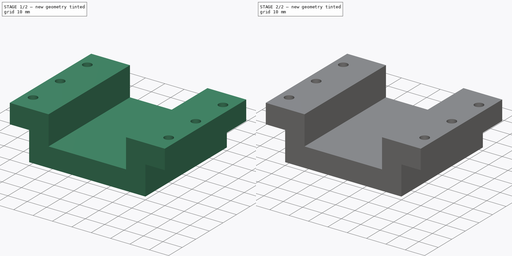
[diagram: build sequence overview — one tinted view per stage of 2, left to right]
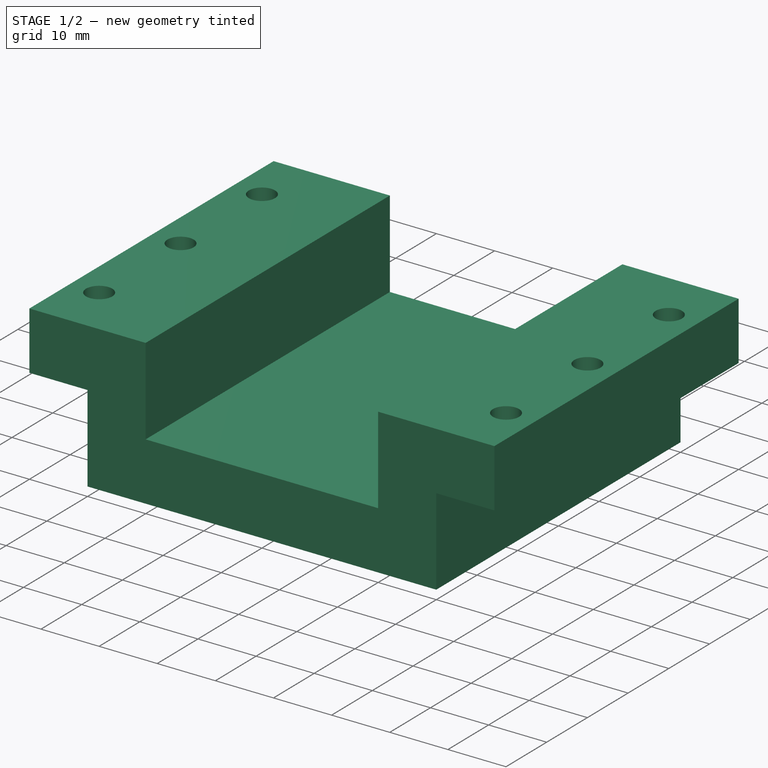
[diagram: stage 1 of 2 — iso view after this stage's code; geometry added in this stage tinted green]
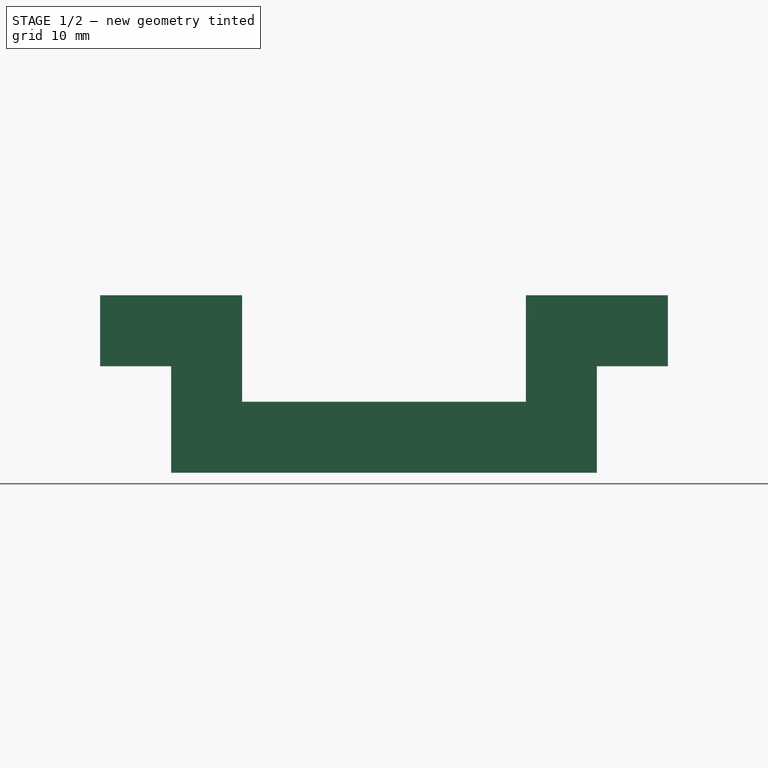
[diagram: stage 1 of 2 — front view after this stage's code; geometry added in this stage tinted green]
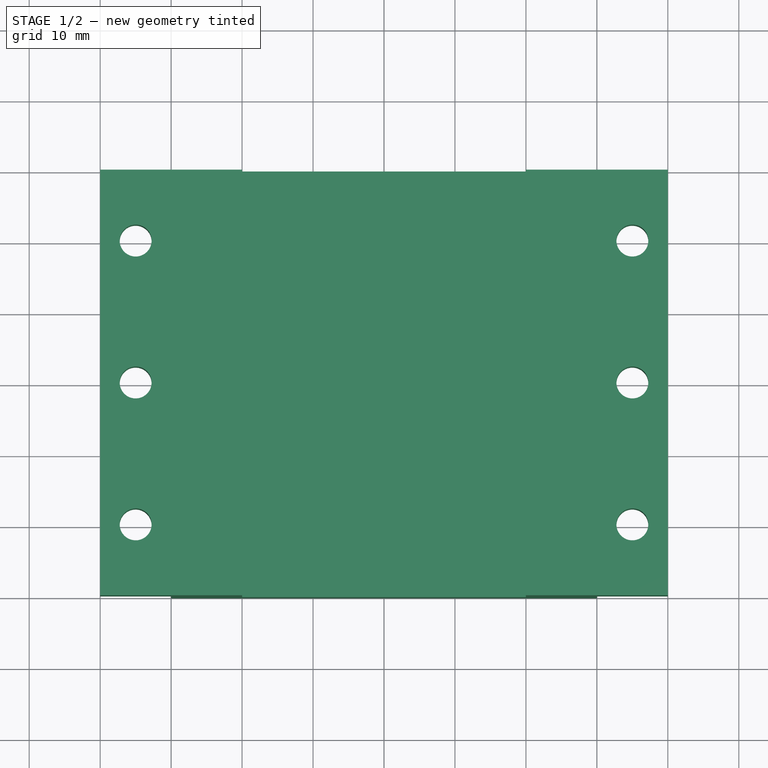
[diagram: stage 1 of 2 — top view after this stage's code; geometry added in this stage tinted green]
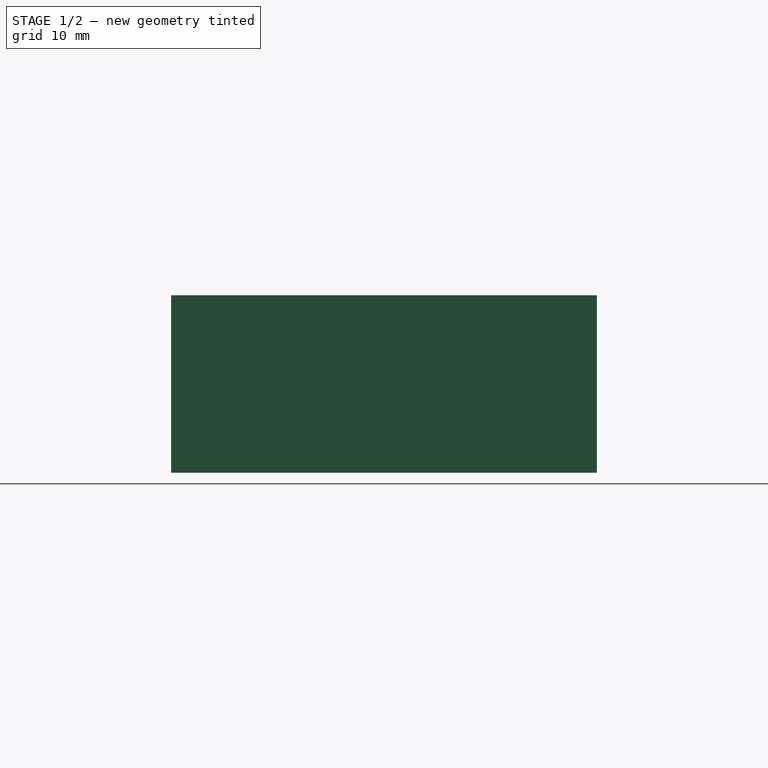
[diagram: stage 1 of 2 — right view after this stage's code; geometry added in this stage tinted green]
FCSTD DOCUMENT  (FreeCAD 0.20R29603 (Git))
Label: square_clamp
License: All rights reserved
LicenseURL: http://en.wikipedia.org/wiki/All_rights_reserved
objects: Sketcher::SketchObject×3, PartDesign::Pocket×2, Spreadsheet::Sheet×1, PartDesign::Pad×1, PartDesign::Plane×1, PartDesign::Body×1
note: 11 computed .brp shape members not serialized (recipe doc carries the construction recipe); baked Part::Feature solids carry a one-line shape summary decoded from their .brp

FEATURE [Sketcher::SketchObject] Sketch
  FullyConstrained = true
  MapMode = 5
  Placement = pos=(0,0,0) rot=(1,0,0;1.5708rad)
  Support = -> [XZ_Plane]
  expr: Constraints[16] = Spreadsheet.object_width
  expr: Constraints[17] = Spreadsheet.lip_width + Spreadsheet.wall_thickness
  expr: Constraints[18] = Spreadsheet.object_depth / 2
  expr: Constraints[23] = Spreadsheet.wall_thickness
  expr: Constraints[32] = Spreadsheet.wall_thickness
  expr: Constraints[42] = Spreadsheet.lip_width
  sketch-geometry (15):
    g0: LineSegment StartX=-40 StartY=0 StartZ=0 EndX=-20 EndY=0 EndZ=0
    g1: LineSegment StartX=-20 StartY=0 StartZ=0 EndX=-20 EndY=-15 EndZ=0
    g2: LineSegment StartX=-20 StartY=-15 StartZ=0 EndX=20 EndY=-15 EndZ=0
    g3: LineSegment StartX=20 StartY=-15 StartZ=0 EndX=20 EndY=0 EndZ=0
    g4: LineSegment StartX=20 StartY=0 StartZ=0 EndX=40 EndY=0 EndZ=0
    g5: LineSegment StartX=-40 StartY=0 StartZ=0 EndX=-40 EndY=-25 EndZ=0
    g6: LineSegment StartX=40 StartY=-25 StartZ=0 EndX=40 EndY=0 EndZ=0
    g7: LineSegment StartX=-40 StartY=0 StartZ=0 EndX=-40 EndY=-10 EndZ=0
    g8: LineSegment StartX=-30 StartY=-10 StartZ=0 EndX=-30 EndY=-25 EndZ=0
    g9: LineSegment StartX=30 StartY=-25 StartZ=0 EndX=30 EndY=-10 EndZ=0
    g10: LineSegment StartX=40 StartY=-10 StartZ=0 EndX=40 EndY=0 EndZ=0
    g11: LineSegment StartX=-40 StartY=-25 StartZ=0 EndX=40 EndY=-25 EndZ=0
    g12: LineSegment StartX=-30 StartY=-25 StartZ=0 EndX=30 EndY=-25 EndZ=0
    g13: LineSegment StartX=-40 StartY=-10 StartZ=0 EndX=-30 EndY=-10 EndZ=0
    g14: LineSegment StartX=30 StartY=-10 StartZ=0 EndX=40 EndY=-10 EndZ=0
  constraints (43):
    c: PointOnObject(g0,g-1)
    c: PointOnObject(g0,g-1)
    c: Coincident(g0,g1)
    c: Vertical(g1)
    c: Coincident(g1,g2)
    c: Horizontal(g2)
    c: Coincident(g2,g3)
    c: Vertical(g3)
    c: Coincident(g3,g4)
    c: PointOnObject(g4,g-1)
    c: Symmetric(g0,g3,g-1)
    c: Equal(g0,g4)
    c: Coincident(g0,g5)
    c: Vertical(g5)
    c: Coincident(g6,g4)
    c: Vertical(g6)
    c: Distance(g2) = 40
    c: Distance(g0) = 20
    c: Distance(g1) = 15
    c: Coincident(g0,g7)
    c: PointOnObject(g7,g5)
    c: PointOnObject(g10,g6)
    c: Coincident(g10,g4)
    c: Distance(g10) = 10
    c: Equal(g10,g7)
    c: Vertical(g8)
    c: Vertical(g9)
    c: Coincident(g11,g5)
    c: Coincident(g11,g6)
    c: Horizontal(g11)
    c: PointOnObject(g8,g11)
    c: PointOnObject(g9,g11)
    c: Distance(g1,g11) = 10
    c: Coincident(g12,g8)
    c: Coincident(g12,g9)
    c: Coincident(g13,g7)
    c: Coincident(g13,g8)
    c: Horizontal(g13)
    c: Coincident(g14,g9)
    c: Coincident(g14,g10)
    c: Horizontal(g14)
    c: Equal(g13,g14)
    c: Distance(g13) = 10
FEATURE [Spreadsheet::Sheet] Spreadsheet
  cells = A1=Height; B1(clamp_height)=60; A2=Object depth; B2(object_depth)=30; A3=Object width; B3(object_width)=40; A4=Wall thickness; B4(wall_thickness)=10; A5=Lip width; B5(lip_width)=10; A6=Lip Hole diameter; B6(lip_hole_diameter)=4.5; A7=Lip Hex width; B7(lip_hex_width)=7; A8=Lip hole spacing; B8(lip_hole_spacing)=20
FEATURE [PartDesign::Pad] Pad  label="clamp_body"
  Direction = (0,-1,-2e-16)
  Length = 60
  Length2 = 10
  Placement = pos=(0,0,0) rot=(1,0,0;1.5708rad)
  Profile = -> Sketch
  ReferenceAxis = -> Sketch [N_Axis]
  Type = 0
  expr: Length = Spreadsheet.clamp_height
FEATURE [PartDesign::Plane] DatumPlane001
  AttachmentOffset = pos=(0,0,-10) rot=(0,0,1;0rad)
  Length = 96.4924
  MapMode = 5
  Placement = pos=(0,0,-10) rot=(0,0,1;0rad)
  ResizeMode = 0
  Support = -> [XY_Plane]
  Width = 101.492
  expr: .AttachmentOffset.Base.z = -Spreadsheet.wall_thickness
FEATURE [Sketcher::SketchObject] Sketch004
  FullyConstrained = true
  MapMode = 5
  Placement = pos=(0,0,-10) rot=(0,0,1;0rad)
  Support = -> [DatumPlane001]
  expr: Constraints[11] = -(Spreadsheet.object_width / 2 + Spreadsheet.lip_width / 2 + Spreadsheet.wall_thickness)
  expr: Constraints[12] = Spreadsheet.object_width / 2 + Spreadsheet.lip_width / 2 + Spreadsheet.wall_thickness
  expr: Constraints[18] = Spreadsheet.lip_hole_spacing / 2
  expr: Constraints[19] = Spreadsheet.lip_hole_spacing
  expr: Constraints[2] = Spreadsheet.lip_hole_diameter
  sketch-geometry (16):
    g0: Circle CenterX=-35 CenterY=-10 CenterZ=0 NormalX=0 NormalY=0 NormalZ=1 AngleXU=0 Radius=2.25
    g1: Circle CenterX=35 CenterY=-10 CenterZ=0 NormalX=0 NormalY=0 NormalZ=1 AngleXU=0 Radius=2.25
    g2: Circle CenterX=-35 CenterY=-30 CenterZ=0 NormalX=0 NormalY=0 NormalZ=1 AngleXU=0 Radius=2.25
    g3: Circle CenterX=35 CenterY=-30 CenterZ=0 NormalX=0 NormalY=0 NormalZ=1 AngleXU=0 Radius=2.25
    g4: LineSegment StartX=-35 StartY=0 StartZ=0 EndX=-35 EndY=-10 EndZ=0
    g5: LineSegment StartX=-35 StartY=-10 StartZ=0 EndX=-35 EndY=-30 EndZ=0
    g6: LineSegment StartX=35 StartY=-2e-16 StartZ=0 EndX=35 EndY=-10 EndZ=0
    g7: LineSegment StartX=35 StartY=-10 StartZ=0 EndX=35 EndY=-30 EndZ=0
    g8: LineSegment StartX=-35 StartY=-30 StartZ=0 EndX=-35 EndY=-50 EndZ=0
    g9: LineSegment StartX=-35 StartY=-50 StartZ=0 EndX=-35 EndY=-70 EndZ=0
    g10: LineSegment StartX=35 StartY=-30 StartZ=0 EndX=35 EndY=-50 EndZ=0
    g11: LineSegment StartX=35 StartY=-50 StartZ=0 EndX=35 EndY=-70 EndZ=0
    g12: Circle CenterX=-35 CenterY=-50 CenterZ=0 NormalX=0 NormalY=0 NormalZ=1 AngleXU=0 Radius=2.25
    g13: Circle CenterX=-35 CenterY=-70 CenterZ=0 NormalX=0 NormalY=0 NormalZ=1 AngleXU=0 Radius=2.25
    g14: Circle CenterX=35 CenterY=-50 CenterZ=0 NormalX=0 NormalY=0 NormalZ=1 AngleXU=0 Radius=2.25
    g15: Circle CenterX=35 CenterY=-70 CenterZ=0 NormalX=0 NormalY=0 NormalZ=1 AngleXU=0 Radius=2.25
  constraints (42):
    c: Symmetric(g0,g1,g-2)
    c: Equal(g1,g0)
    c: Diameter(g1) = 4.5
    c: PointOnObject(g4,g-1)
    c: Vertical(g4)
    c: Coincident(g4,g5)
    c: Vertical(g5)
    c: PointOnObject(g6,g-1)
    c: Vertical(g6)
    c: Coincident(g6,g7)
    c: Vertical(g7)
    c: DistanceX(g-2,g4) = -35
    c: DistanceX(g-2,g6) = 35
    c: Coincident(g0,g4)
    c: Coincident(g2,g5)
    c: Coincident(g3,g7)
    c: Equal(g1,g3)
    c: Equal(g1,g2)
    c: Distance(g4) = 10
    c: Distance(g5) = 20
    c: Equal(g7,g5)
    c: Equal(g4,g6)
    c: Coincident(g8,g2)
    c: Vertical(g8)
    c: Coincident(g8,g9)
    c: Vertical(g9)
    c: Coincident(g10,g3)
    c: Vertical(g10)
    c: Coincident(g10,g11)
    c: Vertical(g11)
    c: Equal(g8,g5)
    c: Equal(g9,g5)
    c: Equal(g5,g11)
    c: Equal(g10,g5)
    c: Coincident(g12,g8)
    c: Coincident(g13,g9)
    c: Coincident(g14,g10)
    c: Coincident(g15,g11)
    c: Equal(g1,g12)
    c: Equal(g1,g14)
    c: Equal(g1,g15)
    c: Equal(g1,g13)
FEATURE [PartDesign::Pocket] Pocket002  label="lips_holes"
  BaseFeature = -> Pad
  Direction = (0,0,-1)
  Length = 10
  Length2 = 5
  Placement = pos=(0,0,0) rot=(1,0,0;1.5708rad)
  Profile = -> Sketch004
  ReferenceAxis = -> Sketch004 [N_Axis]
  Reversed = true
  Type = 0
  expr: Length = Spreadsheet.wall_thickness
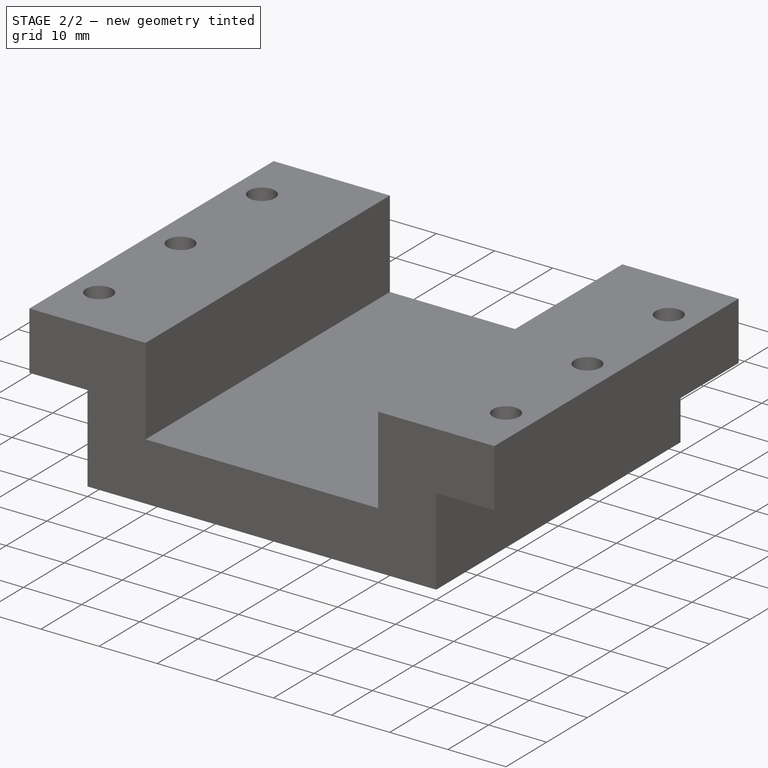
[diagram: stage 2 of 2 — iso view after this stage's code; geometry added in this stage tinted green]
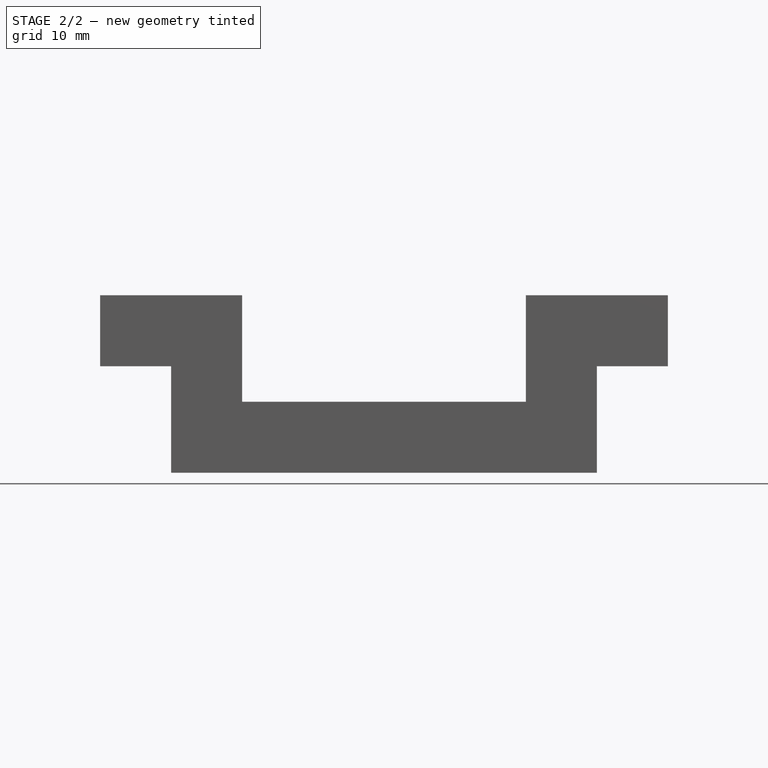
[diagram: stage 2 of 2 — front view after this stage's code; geometry added in this stage tinted green]
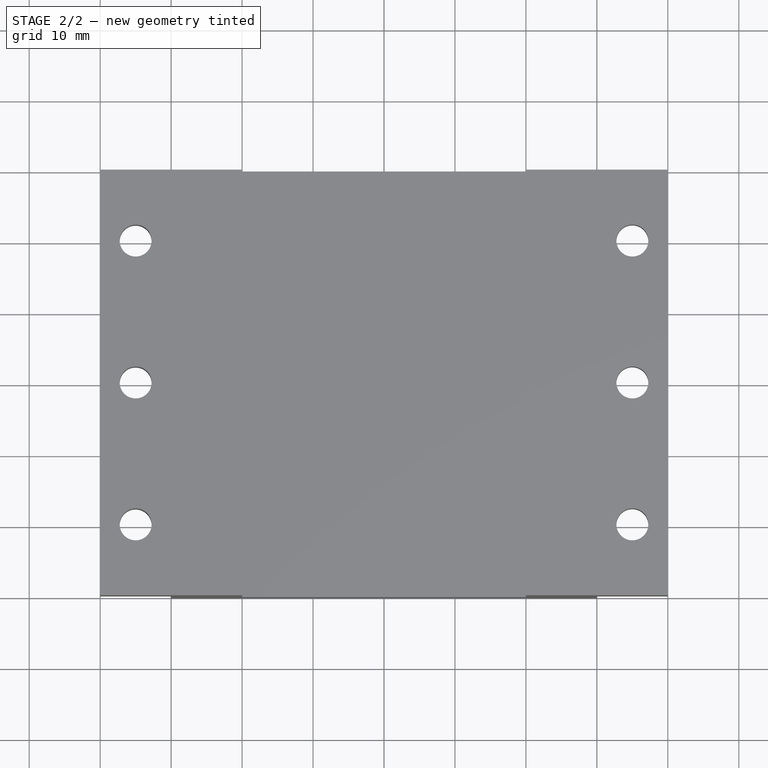
[diagram: stage 2 of 2 — top view after this stage's code; geometry added in this stage tinted green]
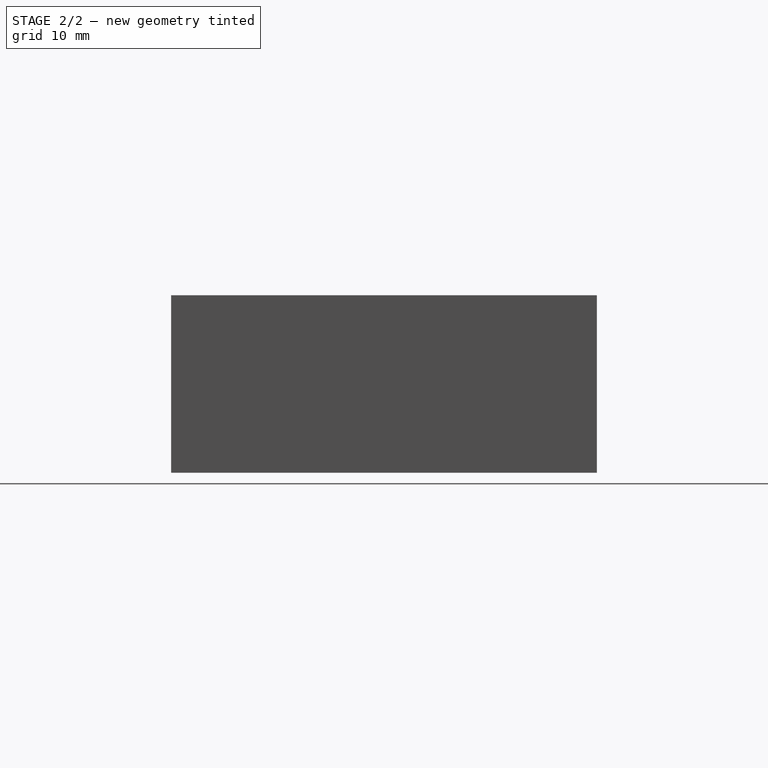
[diagram: stage 2 of 2 — right view after this stage's code; geometry added in this stage tinted green]
FEATURE [Sketcher::SketchObject] Sketch005
  FullyConstrained = true
  MapMode = 5
  Placement = pos=(0,0,-10) rot=(0,0,1;0rad)
  Support = -> [DatumPlane001]
  expr: Constraints[85] = Spreadsheet.lip_hex_width
  expr: Constraints[89] = Spreadsheet.lip_hole_spacing / 2
  expr: Constraints[8] = Spreadsheet.object_width / 2 + Spreadsheet.lip_width / 2 + Spreadsheet.wall_thickness
  expr: Constraints[90] = Spreadsheet.lip_hole_spacing
  sketch-geometry (32):
    g0: LineSegment StartX=35 StartY=0 StartZ=0 EndX=35 EndY=-10 EndZ=0
    g1: LineSegment StartX=35 StartY=-10 StartZ=0 EndX=35 EndY=-30 EndZ=0
    g2: LineSegment StartX=35 StartY=-30 StartZ=0 EndX=35 EndY=-50 EndZ=0
    g3: LineSegment StartX=35 StartY=-50 StartZ=0 EndX=35 EndY=-70 EndZ=0
    g4: LineSegment StartX=39.0415 StartY=-10 StartZ=0 EndX=37.0207 EndY=-6.5 EndZ=0
    g5: LineSegment StartX=37.0207 StartY=-6.5 StartZ=0 EndX=32.9793 EndY=-6.5 EndZ=0
    g6: LineSegment StartX=32.9793 StartY=-6.5 StartZ=0 EndX=30.9585 EndY=-10 EndZ=0
    g7: LineSegment StartX=30.9585 StartY=-10 StartZ=0 EndX=32.9793 EndY=-13.5 EndZ=0
    g8: LineSegment StartX=32.9793 StartY=-13.5 StartZ=0 EndX=37.0207 EndY=-13.5 EndZ=0
    g9: LineSegment StartX=37.0207 StartY=-13.5 StartZ=0 EndX=39.0415 EndY=-10 EndZ=0
    g10: Circle CenterX=35 CenterY=-10 CenterZ=0 NormalX=0 NormalY=0 NormalZ=1 AngleXU=0 Radius=4.04145
    g11: LineSegment StartX=39.0415 StartY=-30 StartZ=0 EndX=37.0207 EndY=-26.5 EndZ=0
    g12: LineSegment StartX=37.0207 StartY=-26.5 StartZ=0 EndX=32.9793 EndY=-26.5 EndZ=0
    g13: LineSegment StartX=32.9793 StartY=-26.5 StartZ=0 EndX=30.9585 EndY=-30 EndZ=0
    g14: LineSegment StartX=30.9585 StartY=-30 StartZ=0 EndX=32.9793 EndY=-33.5 EndZ=0
    g15: LineSegment StartX=32.9793 StartY=-33.5 StartZ=0 EndX=37.0207 EndY=-33.5 EndZ=0
    g16: LineSegment StartX=37.0207 StartY=-33.5 StartZ=0 EndX=39.0415 EndY=-30 EndZ=0
    g17: Circle CenterX=35 CenterY=-30 CenterZ=0 NormalX=0 NormalY=0 NormalZ=1 AngleXU=0 Radius=4.04145
    g18: LineSegment StartX=39.0415 StartY=-50 StartZ=0 EndX=37.0207 EndY=-46.5 EndZ=0
    g19: LineSegment StartX=37.0207 StartY=-46.5 StartZ=0 EndX=32.9793 EndY=-46.5 EndZ=0
    g20: LineSegment StartX=32.9793 StartY=-46.5 StartZ=0 EndX=30.9585 EndY=-50 EndZ=0
    g21: LineSegment StartX=30.9585 StartY=-50 StartZ=0 EndX=32.9793 EndY=-53.5 EndZ=0
    g22: LineSegment StartX=32.9793 StartY=-53.5 StartZ=0 EndX=37.0207 EndY=-53.5 EndZ=0
    g23: LineSegment StartX=37.0207 StartY=-53.5 StartZ=0 EndX=39.0415 EndY=-50 EndZ=0
    g24: Circle CenterX=35 CenterY=-50 CenterZ=0 NormalX=0 NormalY=0 NormalZ=1 AngleXU=0 Radius=4.04145
    g25: LineSegment StartX=39.0415 StartY=-70 StartZ=0 EndX=37.0207 EndY=-66.5 EndZ=0
    g26: LineSegment StartX=37.0207 StartY=-66.5 StartZ=0 EndX=32.9793 EndY=-66.5 EndZ=0
    g27: LineSegment StartX=32.9793 StartY=-66.5 StartZ=0 EndX=30.9585 EndY=-70 EndZ=0
    g28: LineSegment StartX=30.9585 StartY=-70 StartZ=0 EndX=32.9793 EndY=-73.5 EndZ=0
    g29: LineSegment StartX=32.9793 StartY=-73.5 StartZ=0 EndX=37.0207 EndY=-73.5 EndZ=0
    g30: LineSegment StartX=37.0207 StartY=-73.5 StartZ=0 EndX=39.0415 EndY=-70 EndZ=0
    g31: Circle CenterX=35 CenterY=-70 CenterZ=0 NormalX=0 NormalY=0 NormalZ=1 AngleXU=0 Radius=4.04145
  constraints (77):
    c: PointOnObject(g0,g-1)
    c: Vertical(g0)
    c: Coincident(g0,g1)
    c: Vertical(g1)
    c: Coincident(g1,g2)
    c: Vertical(g2)
    c: Coincident(g2,g3)
    c: Vertical(g3)
    c: DistanceX(g-2,g0) = 35
    c: Coincident(g4,g5)
    c: Coincident(g5,g6)
    c: Coincident(g6,g7)
    c: Coincident(g7,g8)
    c: Coincident(g8,g9)
    c: Coincident(g9,g4)
    c: Equal(g4, g5-g9) x5
    c: PointOnObject(g4,g10)
    c: PointOnObject(g5,g10)
    c: PointOnObject(g6,g10)
    c: PointOnObject(g7,g10)
    c: PointOnObject(g8,g10)
    c: PointOnObject(g9,g10)
    c: Coincident(g10,g0)
    c: Coincident(g11,g12)
    c: Coincident(g12,g13)
    c: Coincident(g13,g14)
    c: Coincident(g14,g15)
    c: Coincident(g15,g16)
    c: Coincident(g16,g11)
    c: Equal(g11, g12-g16) x5
    c: PointOnObject(g11,g17)
    c: PointOnObject(g12,g17)
    c: PointOnObject(g13,g17)
    c: PointOnObject(g14,g17)
    c: PointOnObject(g15,g17)
    c: PointOnObject(g16,g17)
    c: Coincident(g17,g1)
    c: Coincident(g18,g19)
    c: Coincident(g19,g20)
    c: Coincident(g20,g21)
    c: Coincident(g21,g22)
    c: Coincident(g22,g23)
    c: Coincident(g23,g18)
    c: Equal(g18, g19-g23) x5
    c: PointOnObject(g18,g24)
    c: PointOnObject(g19,g24)
    c: PointOnObject(g20,g24)
    c: PointOnObject(g21,g24)
    c: PointOnObject(g22,g24)
    c: PointOnObject(g23,g24)
    c: Coincident(g24,g2)
    c: Coincident(g25,g26)
    c: Coincident(g26,g27)
    c: Coincident(g27,g28)
    c: Coincident(g28,g29)
    c: Coincident(g29,g30)
    c: Coincident(g30,g25)
    c: Equal(g25, g26-g30) x5
    c: PointOnObject(g25,g31)
    c: PointOnObject(g26,g31)
    c: PointOnObject(g27,g31)
    c: PointOnObject(g28,g31)
    c: PointOnObject(g29,g31)
    c: PointOnObject(g30,g31)
    c: Coincident(g31,g3)
    c: Horizontal(g5)
    c: Horizontal(g12)
    c: Horizontal(g19)
    c: Horizontal(g26)
    c: Distance(g26,g28) = 7
    c: Equal(g31,g24)
    c: Equal(g31,g17)
    c: Equal(g31,g10)
    c: Distance(g0) = 10
    c: Distance(g1) = 20
    c: Equal(g1,g2)
    c: Equal(g1,g3)
FEATURE [PartDesign::Pocket] Pocket  label="lips_hex"
  BaseFeature = -> Pocket002
  Direction = (0,0,-1)
  Length = 2
  Length2 = 5
  Placement = pos=(0,0,0) rot=(1,0,0;1.5708rad)
  Profile = -> Sketch005
  ReferenceAxis = -> Sketch005 [N_Axis]
  Reversed = true
  Type = 0
FEATURE [PartDesign::Body] Body  label="clamp"
  Group = -> [Sketch,Pad,DatumPlane001,Sketch004,Pocket002,Sketch005,Pocket]
  Origin = -> Origin
  Tip = -> Pocket
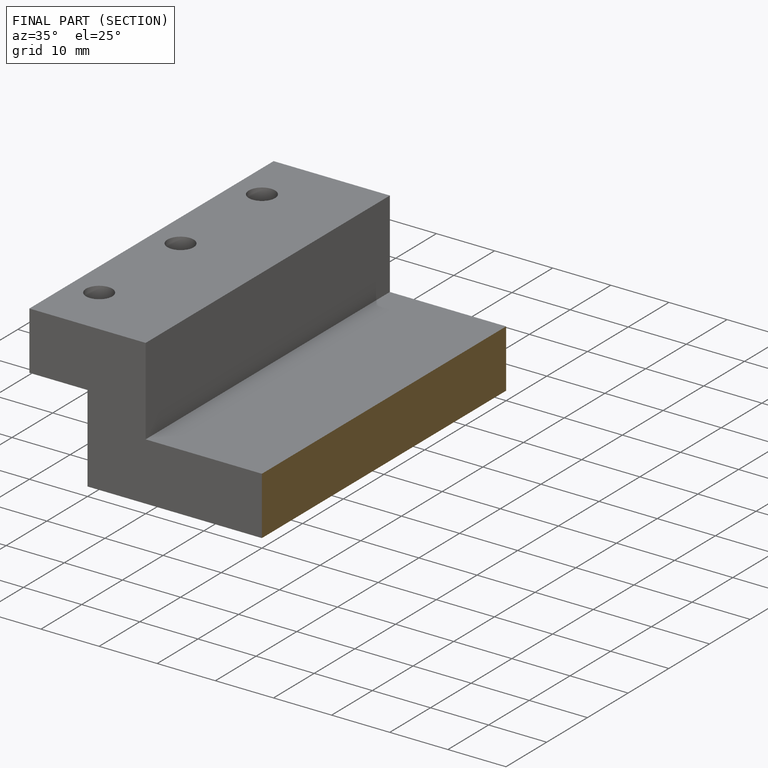
[diagram: finished part — half-section view (interior)]
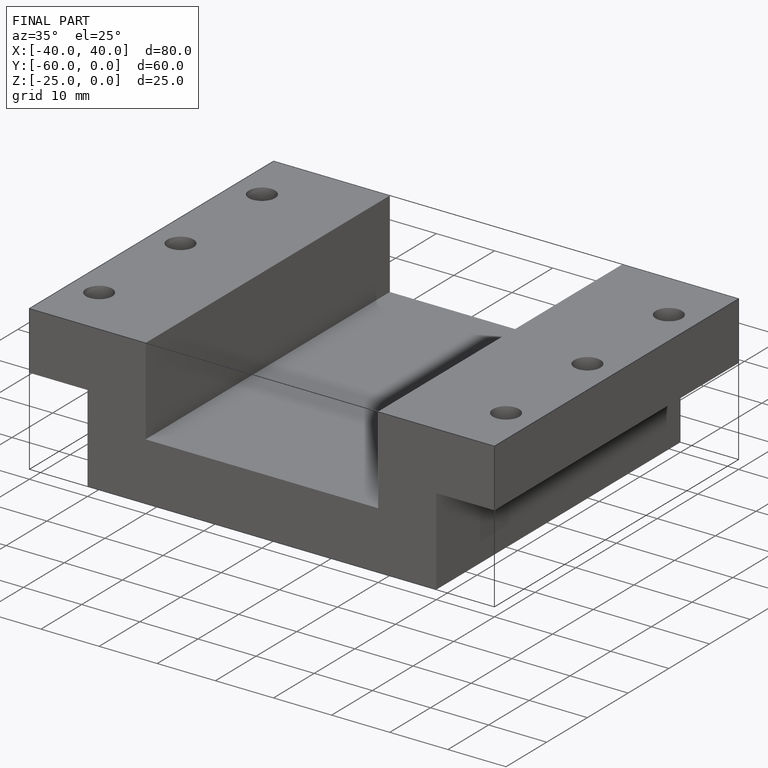
[diagram: finished part — iso view with bounding-box wireframe]
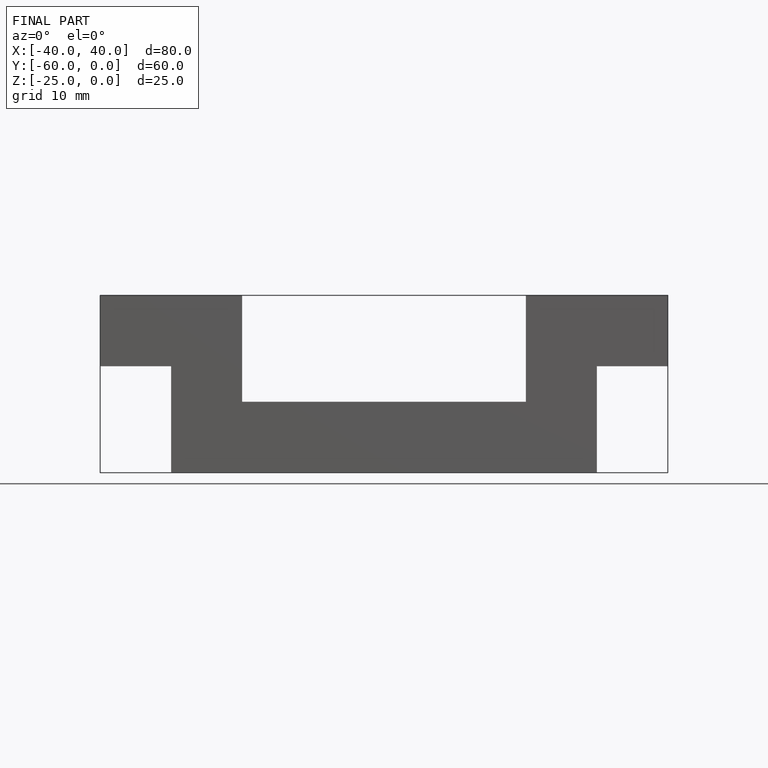
[diagram: finished part — front view with bounding-box wireframe]
